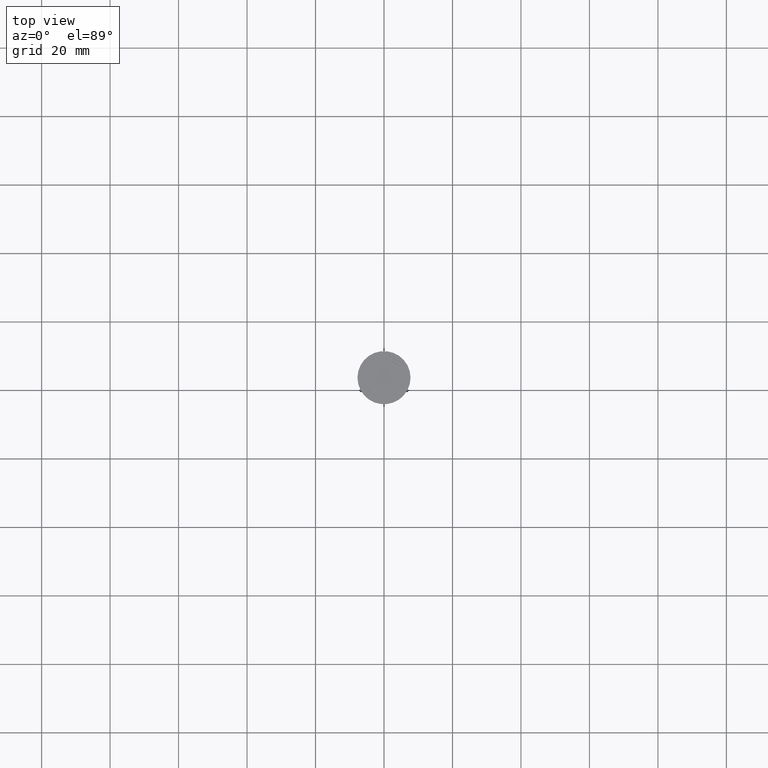
[diagram: clean part render]
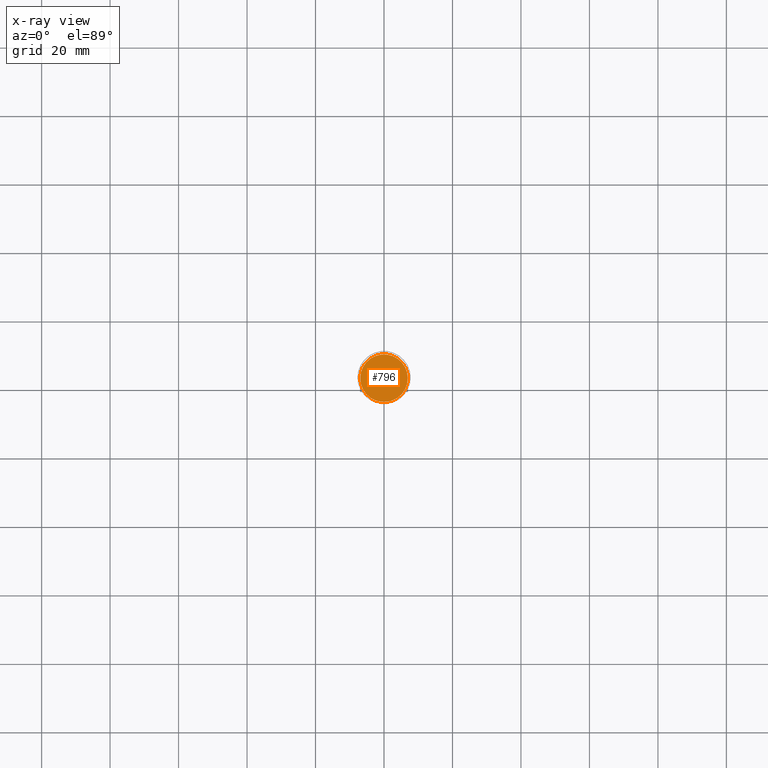
[diagram: x-ray — body ghosted, one internal face saturated and labeled with its STEP entity id]
A machine part, top view, then the same camera in x-ray: the body is ghosted and one INTERNAL B-rep face — a face not visible from any outside direction — is saturated and labeled: STEP entity #796.
In plain terms, the highlighted planar face has unit normal (0, 0, -1).
Its self-contained STEP definition (entity closure, byte-faithful):
#156 = AXIS2_PLACEMENT_3D ( 'NONE', #797, #1733, #2092 ) ;
#160 = AXIS2_PLACEMENT_3D ( 'NONE', #2280, #478, #667 ) ;
#235 = CARTESIAN_POINT ( 'NONE',  ( 6.950000000000001066, 8.694992273946209718E-16, -10.50000000000000178 ) ) ;
#351 = ORIENTED_EDGE ( 'NONE', *, *, #1560, .T. ) ;
#478 = DIRECTION ( 'NONE',  ( -0.000000000000000000, -0.000000000000000000, 1.000000000000000000 ) ) ;
#479 = ORIENTED_EDGE ( 'NONE', *, *, #921, .T. ) ;
#667 = DIRECTION ( 'NONE',  ( -1.000000000000000000, 0.000000000000000000, 0.000000000000000000 ) ) ;
#761 = AXIS2_PLACEMENT_3D ( 'NONE', #1757, #1233, #1605 ) ;
#796 = ADVANCED_FACE ( 'NONE', ( #1525 ), #1024, .F. ) ;
#797 = CARTESIAN_POINT ( 'NONE',  ( 0.000000000000000000, 0.000000000000000000, -10.50000000000000178 ) ) ;
#921 = EDGE_CURVE ( 'NONE', #1704, #2283, #2126, .T. ) ;
#1024 = PLANE ( 'NONE',  #156 ) ;
#1070 = CIRCLE ( 'NONE', #160, 6.950000000000001066 ) ;
#1233 = DIRECTION ( 'NONE',  ( -0.000000000000000000, -0.000000000000000000, 1.000000000000000000 ) ) ;
#1264 = CARTESIAN_POINT ( 'NONE',  ( -6.950000000000001066, 0.000000000000000000, -10.50000000000000178 ) ) ;
#1525 = FACE_OUTER_BOUND ( 'NONE', #1697, .T. ) ;
#1560 = EDGE_CURVE ( 'NONE', #2283, #1704, #1070, .T. ) ;
#1605 = DIRECTION ( 'NONE',  ( -1.000000000000000000, 0.000000000000000000, 0.000000000000000000 ) ) ;
#1697 = EDGE_LOOP ( 'NONE', ( #479, #351 ) ) ;
#1704 = VERTEX_POINT ( 'NONE', #1264 ) ;
#1733 = DIRECTION ( 'NONE',  ( 0.000000000000000000, 0.000000000000000000, -1.000000000000000000 ) ) ;
#1757 = CARTESIAN_POINT ( 'NONE',  ( 0.000000000000000000, 0.000000000000000000, -10.50000000000000178 ) ) ;
#2092 = DIRECTION ( 'NONE',  ( -1.000000000000000000, 0.000000000000000000, -0.000000000000000000 ) ) ;
#2126 = CIRCLE ( 'NONE', #761, 6.950000000000001066 ) ;
#2280 = CARTESIAN_POINT ( 'NONE',  ( 0.000000000000000000, 0.000000000000000000, -10.50000000000000178 ) ) ;
#2283 = VERTEX_POINT ( 'NONE', #235 ) ;